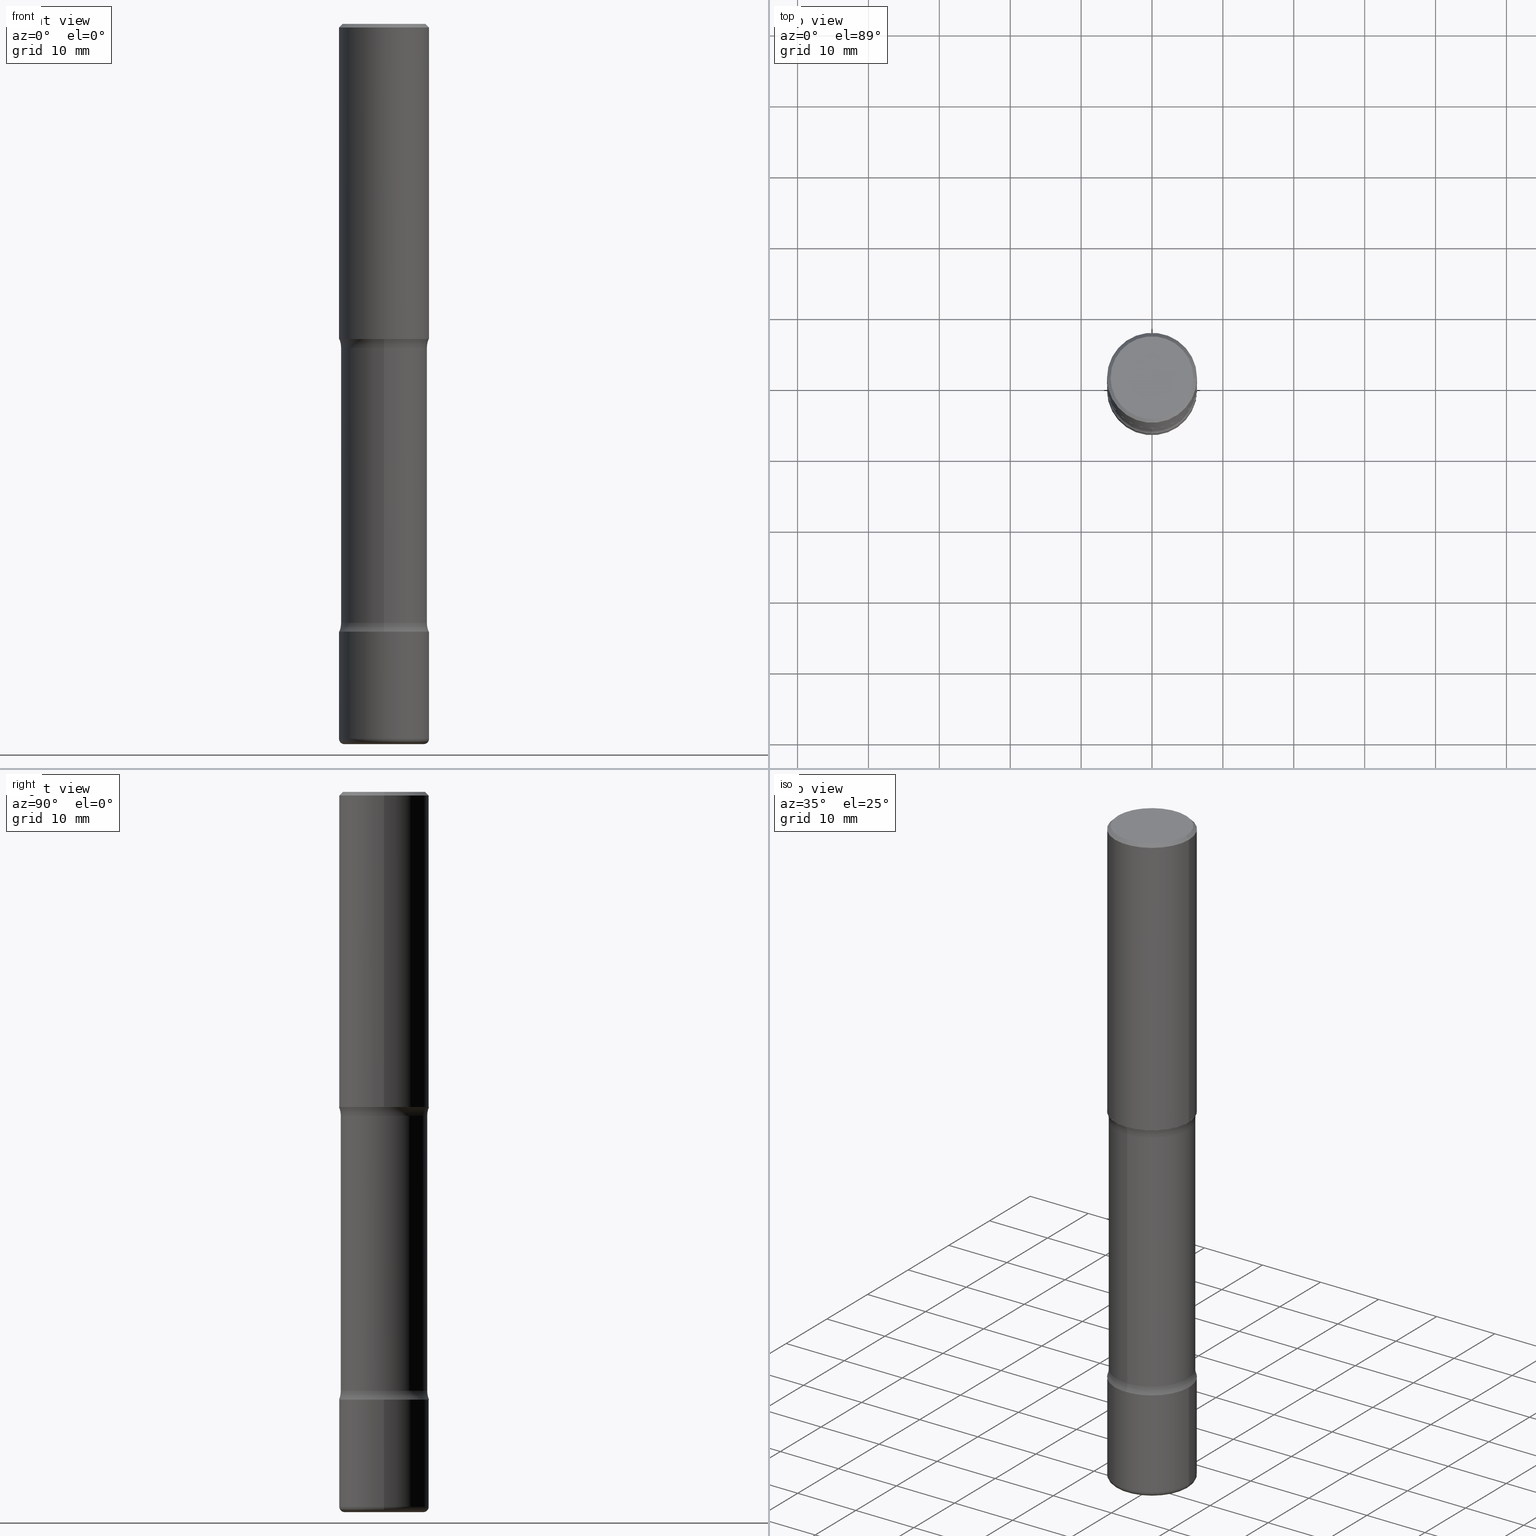
[diagram: canonical four-view strip — front | top / right | iso, engineering-drawing reading convention]
A machine part, canonical four-view strip (front | top / right | iso — engineering-drawing reading convention). The complete STEP part file that produces these views, byte-faithful:
ISO-10303-21;
HEADER;
FILE_DESCRIPTION (( 'STEP AP203' ),
    '1' );
FILE_NAME ('33552.STEP',
    '2024-03-01T22:47:44',
    ( '' ),
    ( '' ),
    'SwSTEP 2.0',
    'SolidWorks 2023',
    '' );
FILE_SCHEMA (( 'CONFIG_CONTROL_DESIGN' ));
ENDSEC;

DATA;
#1 = CIRCLE ( 'NONE', #535, 0.2200000000000003619 ) ;
#2 = CARTESIAN_POINT ( 'NONE',  ( 9.556582629979415278E-29, -1.428855717392867652E-14, -3.999999999999998668 ) ) ;
#3 = AXIS2_PLACEMENT_3D ( 'NONE', #124, #299, #467 ) ;
#4 = DIRECTION ( 'NONE',  ( 1.000000000000000000, -6.982962677686269077E-15, 0.000000000000000000 ) ) ;
#5 = DIRECTION ( 'NONE',  ( -1.000000000000000000, 6.982962677686267499E-15, 0.000000000000000000 ) ) ;
#6 = EDGE_LOOP ( 'NONE', ( #421, #279 ) ) ;
#7 = DIRECTION ( 'NONE',  ( 2.085000654567330410E-29, -4.007692248532904727E-15, -1.000000000000000000 ) ) ;
#8 =( CONVERSION_BASED_UNIT ( 'INCH', #96 ) LENGTH_UNIT ( ) NAMED_UNIT ( #147 ) );
#9 = EDGE_CURVE ( 'NONE', #544, #20, #139, .T. ) ;
#10 = DIRECTION ( 'NONE',  ( 2.445468806185136597E-29, -3.491481338843145583E-15, -1.000000000000000000 ) ) ;
#11 = VECTOR ( 'NONE', #432, 39.37007874015748143 ) ;
#12 = ORGANIZATION ( 'UNSPECIFIED', 'UNSPECIFIED', '' ) ;
#13 = CALENDAR_DATE ( 2024, 1, 3 ) ;
#14 = DIRECTION ( 'NONE',  ( 6.982962677686265133E-15, 1.000000000000000000, -4.553079989440456447E-15 ) ) ;
#15 = DATE_AND_TIME ( #269, #168 ) ;
#16 = CARTESIAN_POINT ( 'NONE',  ( -2.504081769186527752E-15, -0.3650000000000117040, -3.326010205144334098 ) ) ;
#17 = EDGE_CURVE ( 'NONE', #343, #321, #241, .T. ) ;
#18 = APPROVAL_ROLE ( '' ) ;
#19 = DIRECTION ( 'NONE',  ( 2.438088387897960049E-29, -3.491481338843145188E-15, -1.000000000000000000 ) ) ;
#20 = VERTEX_POINT ( 'NONE', #260 ) ;
#21 = PERSON_AND_ORGANIZATION_ROLE ( 'design_owner' ) ;
#22 = CIRCLE ( 'NONE', #94, 0.2500000000000001110 ) ;
#23 = CIRCLE ( 'NONE', #57, 0.1250000000000000555 ) ;
#24 = DIRECTION ( 'NONE',  ( 2.085000654567330410E-29, -4.007692248532904727E-15, -1.000000000000000000 ) ) ;
#25 = VERTEX_POINT ( 'NONE', #503 ) ;
#26 = CARTESIAN_POINT ( 'NONE',  ( -0.2500000000000003331, -1.104610837750119891E-14, -3.375000000000000000 ) ) ;
#27 = ORIENTED_EDGE ( 'NONE', *, *, #17, .T. ) ;
#28 = ADVANCED_FACE ( 'NONE', ( #423 ), #559, .F. ) ;
#29 = CARTESIAN_POINT ( 'NONE',  ( 1.675911042644746767E-15, 0.2399999999999935796, -1.798989794855665014 ) ) ;
#30 = VERTEX_POINT ( 'NONE', #291 ) ;
#31 = PRODUCT ( '33552', '33552', '', ( #540 ) ) ;
#32 = CLOSED_SHELL ( 'NONE', ( #510, #385, #352, #132, #70, #28 ) ) ;
#33 = AXIS2_PLACEMENT_3D ( 'NONE', #320, #491, #109 ) ;
#34 = PLANE ( 'NONE',  #367 ) ;
#35 = ORIENTED_EDGE ( 'NONE', *, *, #558, .F. ) ;
#36 = EDGE_CURVE ( 'NONE', #501, #321, #82, .T. ) ;
#37 = CARTESIAN_POINT ( 'NONE',  ( 2.548781377355569154E-15, 0.3649999999999884448, -3.326010205144337206 ) ) ;
#38 = ORIENTED_EDGE ( 'NONE', *, *, #36, .T. ) ;
#39 = EDGE_CURVE ( 'NONE', #130, #323, #192, .T. ) ;
#40 = ORIENTED_EDGE ( 'NONE', *, *, #406, .T. ) ;
#41 = AXIS2_PLACEMENT_3D ( 'NONE', #83, #255, #422 ) ;
#42 = DIRECTION ( 'NONE',  ( 1.000000000000000000, -6.982962677686265922E-15, 4.876225828469305518E-29 ) ) ;
#43 = CARTESIAN_POINT ( 'NONE',  ( -1.043851414335219820E-46, 1.490343170380447200E-32, 4.268512490100411279E-18 ) ) ;
#44 =( LENGTH_UNIT ( ) NAMED_UNIT ( * ) SI_UNIT ( $, .METRE. ) );
#45 = ORIENTED_EDGE ( 'NONE', *, *, #456, .F. ) ;
#46 = FACE_OUTER_BOUND ( 'NONE', #170, .T. ) ;
#47 = CIRCLE ( 'NONE', #231, 0.2399999999999999356 ) ;
#48 = DIRECTION ( 'NONE',  ( 2.085000654567330410E-29, -4.007692248532904727E-15, -1.000000000000000000 ) ) ;
#49 = FACE_OUTER_BOUND ( 'NONE', #481, .T. ) ;
#50 = DIRECTION ( 'NONE',  ( 1.000000000000000000, -6.982962677686267499E-15, 4.876176775795936353E-29 ) ) ;
#51 = EDGE_CURVE ( 'NONE', #20, #544, #466, .T. ) ;
#52 = APPROVAL ( #476, 'UNSPECIFIED' ) ;
#53 = DIRECTION ( 'NONE',  ( 2.085000654567330410E-29, -4.007692248532904727E-15, -1.000000000000000000 ) ) ;
#54 = PERSON_AND_ORGANIZATION ( #477, #12 ) ;
#55 = FACE_OUTER_BOUND ( 'NONE', #245, .T. ) ;
#56 = AXIS2_PLACEMENT_3D ( 'NONE', #169, #212, #509 ) ;
#57 = AXIS2_PLACEMENT_3D ( 'NONE', #37, #416, #333 ) ;
#58 = DATE_AND_TIME ( #439, #67 ) ;
#59 = DIRECTION ( 'NONE',  ( 2.085000654567330410E-29, -4.007692248532904727E-15, -1.000000000000000000 ) ) ;
#60 = ORIENTED_EDGE ( 'NONE', *, *, #414, .F. ) ;
#61 = APPROVAL_DATE_TIME ( #15, #52 ) ;
#62 = CARTESIAN_POINT ( 'NONE',  ( 0.2500000000000002776, -1.560692158462885722E-14, -3.969999999999999307 ) ) ;
#63 = VERTEX_POINT ( 'NONE', #340 ) ;
#64 = PERSON_AND_ORGANIZATION ( #477, #12 ) ;
#65 = DIRECTION ( 'NONE',  ( -1.000000000000000000, 6.982962677686265922E-15, -4.876176775795935793E-29 ) ) ;
#66 = ORIENTED_EDGE ( 'NONE', *, *, #332, .T. ) ;
#67 = LOCAL_TIME ( 17, 47, 44.00000000000000000, #273 ) ;
#68 = CARTESIAN_POINT ( 'NONE',  ( 0.2500000000000001110, -1.784954126219746583E-15, -0.02000000000000000042 ) ) ;
#69 = ORIENTED_EDGE ( 'NONE', *, *, #426, .T. ) ;
#70 = ADVANCED_FACE ( 'NONE', ( #166 ), #337, .T. ) ;
#71 = DIRECTION ( 'NONE',  ( 1.000000000000000000, -6.860497997771530774E-15, 4.834477119241777907E-29 ) ) ;
#72 = CC_DESIGN_DATE_AND_TIME_ASSIGNMENT ( #235, #315, ( #177 ) ) ;
#73 = ORIENTED_EDGE ( 'NONE', *, *, #256, .F. ) ;
#74 = CARTESIAN_POINT ( 'NONE',  ( 4.279570410823988484E-29, -6.110092342975504671E-15, -1.750000000000000000 ) ) ;
#75 = EDGE_CURVE ( 'NONE', #501, #25, #366, .T. ) ;
#76 = ORIENTED_EDGE ( 'NONE', *, *, #445, .F. ) ;
#77 = PRODUCT_DEFINITION_SHAPE ( 'NONE', 'NONE',  #177 ) ;
#78 = AXIS2_PLACEMENT_3D ( 'NONE', #517, #48, #14 ) ;
#79 = CC_DESIGN_APPROVAL ( #324, ( #398 ) ) ;
#80 = CARTESIAN_POINT ( 'NONE',  ( 0.2300000000000001488, -1.681434332853599997E-15, 4.268512490111905999E-18 ) ) ;
#81 = ADVANCED_FACE ( 'NONE', ( #296 ), #210, .T. ) ;
#82 = LINE ( 'NONE', #297, #344 ) ;
#83 = CARTESIAN_POINT ( 'NONE',  ( 4.279570410823988484E-29, -6.110092342975504671E-15, -1.750000000000000000 ) ) ;
#84 = ORIENTED_EDGE ( 'NONE', *, *, #490, .F. ) ;
#85 = EDGE_CURVE ( 'NONE', #415, #257, #47, .T. ) ;
#86 = AXIS2_PLACEMENT_3D ( 'NONE', #43, #552, #42 ) ;
#87 = APPROVAL_PERSON_ORGANIZATION ( #319, #121, #18 ) ;
#88 = ORIENTED_EDGE ( 'NONE', *, *, #530, .T. ) ;
#89 = ORIENTED_EDGE ( 'NONE', *, *, #9, .F. ) ;
#90 = DIRECTION ( 'NONE',  ( 6.982962677686265922E-15, 1.000000000000000000, -4.007692248532904727E-15 ) ) ;
#91 = LINE ( 'NONE', #221, #545 ) ;
#92 = DIRECTION ( 'NONE',  ( 6.982962677686265922E-15, 1.000000000000000000, -4.370956789862834560E-15 ) ) ;
#93 = EDGE_CURVE ( 'NONE', #323, #130, #122, .T. ) ;
#94 = AXIS2_PLACEMENT_3D ( 'NONE', #154, #547, #543 ) ;
#95 = CARTESIAN_POINT ( 'NONE',  ( 4.279570410823988484E-29, -6.110092342975504671E-15, -1.750000000000000000 ) ) ;
#96 = LENGTH_MEASURE_WITH_UNIT ( LENGTH_MEASURE( 0.02539999999999999897 ), #44 );
#97 = CARTESIAN_POINT ( 'NONE',  ( 0.000000000000000000, 0.000000000000000000, 0.000000000000000000 ) ) ;
#98 = PERSON_AND_ORGANIZATION_ROLE ( 'design_supplier' ) ;
#99 = ADVANCED_FACE ( 'NONE', ( #217 ), #144, .T. ) ;
#100 = FACE_OUTER_BOUND ( 'NONE', #404, .T. ) ;
#101 = ORIENTED_EDGE ( 'NONE', *, *, #9, .T. ) ;
#102 = APPROVAL_ROLE ( '' ) ;
#103 = CARTESIAN_POINT ( 'NONE',  ( -0.2500000000000001110, 1.675911042644704760E-15, -0.02000000000000000042 ) ) ;
#104 = AXIS2_PLACEMENT_3D ( 'NONE', #505, #125, #462 ) ;
#105 = CIRCLE ( 'NONE', #3, 0.2500000000000003331 ) ;
#106 = CARTESIAN_POINT ( 'NONE',  ( 9.708511160554990630E-29, -1.386118091520728581E-14, -3.969999999999999307 ) ) ;
#107 = ORIENTED_EDGE ( 'NONE', *, *, #36, .F. ) ;
#108 = CALENDAR_DATE ( 2024, 1, 3 ) ;
#109 = DIRECTION ( 'NONE',  ( 6.860497997771532351E-15, 1.000000000000000000, 0.000000000000000000 ) ) ;
#110 = ORIENTED_EDGE ( 'NONE', *, *, #51, .T. ) ;
#111 = PLANE ( 'NONE',  #484 ) ;
#112 = EDGE_LOOP ( 'NONE', ( #488, #369 ) ) ;
#113 = AXIS2_PLACEMENT_3D ( 'NONE', #259, #120, #383 ) ;
#114 = CIRCLE ( 'NONE', #300, 0.02999999999999995379 ) ;
#115 = DIRECTION ( 'NONE',  ( 6.982962677686265922E-15, 1.000000000000000000, -4.370956789862815627E-15 ) ) ;
#116 = ORIENTED_EDGE ( 'NONE', *, *, #256, .T. ) ;
#117 = CARTESIAN_POINT ( 'NONE',  ( 4.865331157202923538E-29, -5.271249614729646210E-15, -1.750000000000000000 ) ) ;
#118 = EDGE_LOOP ( 'NONE', ( #73, #374, #507, #513 ) ) ;
#119 = LINE ( 'NONE', #205, #293 ) ;
#120 = DIRECTION ( 'NONE',  ( 2.438088387897960049E-29, -3.491481338843145188E-15, -1.000000000000000000 ) ) ;
#121 = APPROVAL ( #402, 'UNSPECIFIED' ) ;
#122 = CIRCLE ( 'NONE', #78, 0.2399999999999990474 ) ;
#123 = AXIS2_PLACEMENT_3D ( 'NONE', #304, #428, #215 ) ;
#124 = CARTESIAN_POINT ( 'NONE',  ( 8.253457220874836014E-29, -1.178374951859561452E-14, -3.375000000000000000 ) ) ;
#125 = DIRECTION ( 'NONE',  ( -2.445468806185136597E-29, 3.491481338843145583E-15, 1.000000000000000000 ) ) ;
#126 = CC_DESIGN_DATE_AND_TIME_ASSIGNMENT ( #186, #361, ( #398 ) ) ;
#127 = EDGE_LOOP ( 'NONE', ( #89, #150, #272, #193 ) ) ;
#128 = EDGE_LOOP ( 'NONE', ( #110, #101 ) ) ;
#129 = AXIS2_PLACEMENT_3D ( 'NONE', #2, #478, #528 ) ;
#130 = VERTEX_POINT ( 'NONE', #137 ) ;
#131 = CARTESIAN_POINT ( 'NONE',  ( 1.606081415867842251E-15, 0.2300000000000001488, -8.009064516888738702E-16 ) ) ;
#132 = ADVANCED_FACE ( 'NONE', ( #228 ), #522, .T. ) ;
#133 = FACE_OUTER_BOUND ( 'NONE', #498, .T. ) ;
#134 = ORIENTED_EDGE ( 'NONE', *, *, #405, .F. ) ;
#135 = DIRECTION ( 'NONE',  ( -1.000000000000000000, 7.105427357601001859E-15, 0.000000000000000000 ) ) ;
#136 = EDGE_CURVE ( 'NONE', #20, #343, #357, .T. ) ;
#137 = CARTESIAN_POINT ( 'NONE',  ( -1.680822009453969216E-15, -0.2400000000000045153, -1.798989794855662794 ) ) ;
#138 = DIRECTION ( 'NONE',  ( 6.982962677686265922E-15, 1.000000000000000000, -4.553079989440439881E-15 ) ) ;
#139 = CIRCLE ( 'NONE', #56, 0.2300000000000001488 ) ;
#140 = CARTESIAN_POINT ( 'NONE',  ( 4.890937612370273159E-31, -6.982962677686291609E-17, -0.02000000000000000042 ) ) ;
#141 = CIRCLE ( 'NONE', #433, 0.2499999999999992506 ) ;
#142 = ADVANCED_FACE ( 'NONE', ( #388 ), #187, .T. ) ;
#143 = PERSON_AND_ORGANIZATION_ROLE ( 'classification_officer' ) ;
#144 = CYLINDRICAL_SURFACE ( 'NONE', #389, 0.2500000000000002220 ) ;
#145 = PERSON_AND_ORGANIZATION ( #477, #12 ) ;
#146 = CARTESIAN_POINT ( 'NONE',  ( 8.253457220874836014E-29, -1.178374951859561452E-14, -3.375000000000000000 ) ) ;
#147 = DIMENSIONAL_EXPONENTS ( 1.000000000000000000, 0.000000000000000000, 0.000000000000000000, 0.000000000000000000, 0.000000000000000000, 0.000000000000000000, 0.000000000000000000 ) ;
#148 = LINE ( 'NONE', #68, #514 ) ;
#149 = AXIS2_PLACEMENT_3D ( 'NONE', #480, #275, #442 ) ;
#150 = ORIENTED_EDGE ( 'NONE', *, *, #294, .T. ) ;
#151 = CIRCLE ( 'NONE', #460, 0.2500000000000002776 ) ;
#152 = DIRECTION ( 'NONE',  ( -2.445468806185136877E-29, 3.491481338843145188E-15, 1.000000000000000000 ) ) ;
#153 = ORIENTED_EDGE ( 'NONE', *, *, #51, .F. ) ;
#154 = CARTESIAN_POINT ( 'NONE',  ( 4.890937612370273159E-31, -6.982962677686291609E-17, -0.02000000000000000042 ) ) ;
#155 = ORIENTED_EDGE ( 'NONE', *, *, #196, .T. ) ;
#156 = CARTESIAN_POINT ( 'NONE',  ( -1.715124499442802427E-15, -0.2500000000000121014, -3.374999999999998668 ) ) ;
#157 = ORIENTED_EDGE ( 'NONE', *, *, #136, .T. ) ;
#158 = ADVANCED_FACE ( 'NONE', ( #100 ), #175, .T. ) ;
#159 = CLOSED_SHELL ( 'NONE', ( #99, #237, #81, #506, #216, #158 ) ) ;
#160 = CC_DESIGN_SECURITY_CLASSIFICATION ( #398, ( #555 ) ) ;
#161 = FACE_OUTER_BOUND ( 'NONE', #6, .T. ) ;
#162 = ORIENTED_EDGE ( 'NONE', *, *, #430, .F. ) ;
#163 = DIRECTION ( 'NONE',  ( 2.085000654567329849E-29, -4.007692248532904727E-15, -1.000000000000000000 ) ) ;
#164 = ORIENTED_EDGE ( 'NONE', *, *, #392, .F. ) ;
#165 = DIRECTION ( 'NONE',  ( -2.445468806185136597E-29, 3.491481338843145583E-15, 1.000000000000000000 ) ) ;
#166 = FACE_OUTER_BOUND ( 'NONE', #532, .T. ) ;
#167 = AXIS2_PLACEMENT_3D ( 'NONE', #285, #240, #278 ) ;
#168 = LOCAL_TIME ( 17, 47, 44.00000000000000000, #267 ) ;
#169 = CARTESIAN_POINT ( 'NONE',  ( -1.043851414335219820E-46, 1.490343170380447200E-32, 4.268512490100411279E-18 ) ) ;
#170 = EDGE_LOOP ( 'NONE', ( #377, #342 ) ) ;
#171 = VERTEX_POINT ( 'NONE', #180 ) ;
#172 = MANIFOLD_SOLID_BREP ( 'Body-Move/Copy2[1]', #32 ) ;
#173 = AXIS2_PLACEMENT_3D ( 'NONE', #117, #244, #411 ) ;
#174 = CC_DESIGN_APPROVAL ( #52, ( #177 ) ) ;
#175 = CYLINDRICAL_SURFACE ( 'NONE', #424, 0.2500000000000002220 ) ;
#176 = CARTESIAN_POINT ( 'NONE',  ( 8.151313466533656524E-29, -1.158741349749535365E-14, -3.326010205144335430 ) ) ;
#177 = PRODUCT_DEFINITION ( 'UNKNOWN', '', #555, #364 ) ;
#178 = DIRECTION ( 'NONE',  ( -2.445468806185136877E-29, 3.491481338843145188E-15, 1.000000000000000000 ) ) ;
#179 = DIRECTION ( 'NONE',  ( 2.438088387897960049E-29, -3.491481338843145188E-15, -1.000000000000000000 ) ) ;
#180 = CARTESIAN_POINT ( 'NONE',  ( -1.715124499442828459E-15, -0.2500000000000044964, -1.749999999999999112 ) ) ;
#181 = APPROVAL_ROLE ( '' ) ;
#182 = AXIS2_PLACEMENT_3D ( 'NONE', #305, #53, #396 ) ;
#183 = DIRECTION ( 'NONE',  ( -2.438088387897960049E-29, 3.491481338843145188E-15, 1.000000000000000000 ) ) ;
#184 = ADVANCED_FACE ( 'NONE', ( #133 ), #303, .F. ) ;
#185 =( GEOMETRIC_REPRESENTATION_CONTEXT ( 3 ) GLOBAL_UNCERTAINTY_ASSIGNED_CONTEXT ( ( #533 ) ) GLOBAL_UNIT_ASSIGNED_CONTEXT ( ( #8, #489, #195 ) ) REPRESENTATION_CONTEXT ( 'NONE', 'WORKASPACE' ) );
#186 = DATE_AND_TIME ( #13, #523 ) ;
#187 = CYLINDRICAL_SURFACE ( 'NONE', #129, 0.2399999999999994915 ) ;
#188 = ORIENTED_EDGE ( 'NONE', *, *, #426, .F. ) ;
#189 = CARTESIAN_POINT ( 'NONE',  ( 1.675911042644795873E-15, 0.2399999999999852252, -4.000000000000000000 ) ) ;
#190 = PERSON_AND_ORGANIZATION_ROLE ( 'creator' ) ;
#191 = LINE ( 'NONE', #236, #220 ) ;
#192 = CIRCLE ( 'NONE', #355, 0.2399999999999990474 ) ;
#193 = ORIENTED_EDGE ( 'NONE', *, *, #136, .F. ) ;
#194 = AXIS2_PLACEMENT_3D ( 'NONE', #494, #390, #4 ) ;
#195 =( NAMED_UNIT ( * ) SI_UNIT ( $, .STERADIAN. ) SOLID_ANGLE_UNIT ( ) );
#196 = EDGE_CURVE ( 'NONE', #331, #30, #91, .T. ) ;
#197 = DIRECTION ( 'NONE',  ( 6.860497997771530774E-15, 1.000000000000000000, 0.000000000000000000 ) ) ;
#198 = ORIENTED_EDGE ( 'NONE', *, *, #553, .T. ) ;
#199 = CARTESIAN_POINT ( 'NONE',  ( -0.2500000000000001110, 1.675911042644704760E-15, -0.02000000000000000042 ) ) ;
#200 = ORIENTED_EDGE ( 'NONE', *, *, #39, .T. ) ;
#201 = FACE_OUTER_BOUND ( 'NONE', #371, .T. ) ;
#202 = ORIENTED_EDGE ( 'NONE', *, *, #456, .T. ) ;
#203 = CIRCLE ( 'NONE', #504, 0.2500000000000003331 ) ;
#204 = CIRCLE ( 'NONE', #243, 0.2200000000000003619 ) ;
#205 = CARTESIAN_POINT ( 'NONE',  ( -0.2500000000000003331, 1.776356839400252831E-15, -1.229733772563727987E-29 ) ) ;
#206 = ORIENTED_EDGE ( 'NONE', *, *, #558, .T. ) ;
#207 = CARTESIAN_POINT ( 'NONE',  ( 9.781875224740546387E-29, -1.396592535537258233E-14, -4.000000000000000000 ) ) ;
#208 = VERTEX_POINT ( 'NONE', #438 ) ;
#209 = EDGE_LOOP ( 'NONE', ( #410, #238, #229, #557 ) ) ;
#210 = CONICAL_SURFACE ( 'NONE', #316, 0.2500000000000001110, 0.7853981633974479459 ) ;
#211 = CC_DESIGN_APPROVAL ( #121, ( #555 ) ) ;
#212 = DIRECTION ( 'NONE',  ( -2.445468806185136597E-29, 3.491481338843145583E-15, 1.000000000000000000 ) ) ;
#213 = EDGE_LOOP ( 'NONE', ( #164, #200, #458, #242 ) ) ;
#214 = ADVANCED_FACE ( 'NONE', ( #55 ), #298, .F. ) ;
#215 = DIRECTION ( 'NONE',  ( 1.000000000000000000, -6.982962677686269077E-15, 0.000000000000000000 ) ) ;
#216 = ADVANCED_FACE ( 'NONE', ( #473 ), #314, .F. ) ;
#217 = FACE_OUTER_BOUND ( 'NONE', #539, .T. ) ;
#218 = CARTESIAN_POINT ( 'NONE',  ( 0.2200000000000003619, -1.539743270429827048E-14, -3.970000000000000195 ) ) ;
#219 = AXIS2_PLACEMENT_3D ( 'NONE', #330, #537, #448 ) ;
#220 = VECTOR ( 'NONE', #152, 39.37007874015748143 ) ;
#221 = CARTESIAN_POINT ( 'NONE',  ( 0.2500000000000003331, -1.745740669421569044E-15, 1.219044193948985630E-29 ) ) ;
#222 = ORIENTED_EDGE ( 'NONE', *, *, #359, .T. ) ;
#223 = DIRECTION ( 'NONE',  ( -2.445468806185136597E-29, 3.491481338843145583E-15, 1.000000000000000000 ) ) ;
#224 = FACE_OUTER_BOUND ( 'NONE', #127, .T. ) ;
#225 = APPROVAL_DATE_TIME ( #312, #121 ) ;
#226 = APPLICATION_CONTEXT ( 'configuration controlled 3d designs of mechanical parts and assemblies' ) ;
#227 = ADVANCED_FACE ( 'NONE', ( #521 ), #353, .T. ) ;
#228 = FACE_OUTER_BOUND ( 'NONE', #318, .T. ) ;
#229 = ORIENTED_EDGE ( 'NONE', *, *, #359, .F. ) ;
#230 = COORDINATED_UNIVERSAL_TIME_OFFSET ( 5, 0, .BEHIND. ) ;
#231 = AXIS2_PLACEMENT_3D ( 'NONE', #350, #7, #311 ) ;
#232 = CARTESIAN_POINT ( 'NONE',  ( 9.556582629979415278E-29, -1.428855717392867652E-14, -3.999999999999998668 ) ) ;
#233 = APPROVAL_DATE_TIME ( #58, #324 ) ;
#234 = DIRECTION ( 'NONE',  ( 2.085000654567330410E-29, -4.007692248532904727E-15, -1.000000000000000000 ) ) ;
#235 = DATE_AND_TIME ( #108, #329 ) ;
#236 = CARTESIAN_POINT ( 'NONE',  ( -0.2500000000000002220, 1.776356839400252042E-15, -1.229733772563727566E-29 ) ) ;
#237 = ADVANCED_FACE ( 'NONE', ( #224 ), #327, .T. ) ;
#238 = ORIENTED_EDGE ( 'NONE', *, *, #486, .T. ) ;
#239 = PERSON_AND_ORGANIZATION_ROLE ( 'creator' ) ;
#240 = DIRECTION ( 'NONE',  ( -2.445468806185136597E-29, 3.491481338843145583E-15, 1.000000000000000000 ) ) ;
#241 = CIRCLE ( 'NONE', #384, 0.2500000000000001110 ) ;
#242 = ORIENTED_EDGE ( 'NONE', *, *, #85, .F. ) ;
#243 = AXIS2_PLACEMENT_3D ( 'NONE', #207, #165, #336 ) ;
#244 = DIRECTION ( 'NONE',  ( 2.085000654567330410E-29, -4.007692248532904727E-15, -1.000000000000000000 ) ) ;
#245 = EDGE_LOOP ( 'NONE', ( #188, #446, #40, #548 ) ) ;
#246 = CARTESIAN_POINT ( 'NONE',  ( 0.2200000000000003619, -1.550217714446356385E-14, -4.000000000000000000 ) ) ;
#247 = ORIENTED_EDGE ( 'NONE', *, *, #75, .T. ) ;
#248 = DIRECTION ( 'NONE',  ( 6.982962677686265922E-15, 1.000000000000000000, -4.007692248532904727E-15 ) ) ;
#249 = ORIENTED_EDGE ( 'NONE', *, *, #406, .F. ) ;
#250 = CIRCLE ( 'NONE', #219, 0.2500000000000002776 ) ;
#251 = CC_DESIGN_PERSON_AND_ORGANIZATION_ASSIGNMENT ( #395, #98, ( #555 ) ) ;
#252 = APPROVAL_PERSON_ORGANIZATION ( #527, #324, #102 ) ;
#253 = FACE_OUTER_BOUND ( 'NONE', #526, .T. ) ;
#254 = DIRECTION ( 'NONE',  ( -2.445468806185136877E-29, 3.491481338843145188E-15, 1.000000000000000000 ) ) ;
#255 = DIRECTION ( 'NONE',  ( -2.445468806185136597E-29, 3.491481338843145583E-15, 1.000000000000000000 ) ) ;
#256 = EDGE_CURVE ( 'NONE', #391, #288, #203, .T. ) ;
#257 = VERTEX_POINT ( 'NONE', #452 ) ;
#258 = AXIS2_PLACEMENT_3D ( 'NONE', #502, #351, #248 ) ;
#259 = CARTESIAN_POINT ( 'NONE',  ( 8.253457220874836014E-29, -1.178374951859561452E-14, -3.375000000000000000 ) ) ;
#260 = CARTESIAN_POINT ( 'NONE',  ( -0.2300000000000001488, 1.640996229256273703E-15, 4.268512490089056766E-18 ) ) ;
#261 = CARTESIAN_POINT ( 'NONE',  ( 0.2500000000000003331, -7.855833012397073715E-15, -1.750000000000000000 ) ) ;
#262 = ORIENTED_EDGE ( 'NONE', *, *, #326, .F. ) ;
#263 = CYLINDRICAL_SURFACE ( 'NONE', #496, 0.2500000000000003331 ) ;
#264 = TOROIDAL_SURFACE ( 'NONE', #512, 0.3650000000000000466, 0.1250000000000000555 ) ;
#265 = APPROVAL_PERSON_ORGANIZATION ( #306, #52, #181 ) ;
#266 = DIRECTION ( 'NONE',  ( 2.085000654567330410E-29, -4.007692248532904727E-15, -1.000000000000000000 ) ) ;
#267 = COORDINATED_UNIVERSAL_TIME_OFFSET ( 5, 0, .BEHIND. ) ;
#268 = CARTESIAN_POINT ( 'NONE',  ( 4.890937612370273159E-31, -6.982962677686291609E-17, -0.02000000000000000042 ) ) ;
#269 = CALENDAR_DATE ( 2024, 1, 3 ) ;
#270 = CC_DESIGN_PERSON_AND_ORGANIZATION_ASSIGNMENT ( #145, #190, ( #177 ) ) ;
#271 = DIRECTION ( 'NONE',  ( 1.000000000000000000, -6.982962677686267499E-15, 4.876176775795936353E-29 ) ) ;
#272 = ORIENTED_EDGE ( 'NONE', *, *, #335, .T. ) ;
#273 = COORDINATED_UNIVERSAL_TIME_OFFSET ( 5, 0, .BEHIND. ) ;
#274 = VECTOR ( 'NONE', #59, 39.37007874015748143 ) ;
#275 = DIRECTION ( 'NONE',  ( -2.445468806185136597E-29, 3.491481338843145583E-15, 1.000000000000000000 ) ) ;
#276 = AXIS2_PLACEMENT_3D ( 'NONE', #534, #479, #277 ) ;
#277 = DIRECTION ( 'NONE',  ( 1.000000000000000000, 0.000000000000000000, 0.000000000000000000 ) ) ;
#278 = DIRECTION ( 'NONE',  ( 1.000000000000000000, -6.982962677686269866E-15, 4.883557194083114022E-29 ) ) ;
#279 = ORIENTED_EDGE ( 'NONE', *, *, #553, .F. ) ;
#280 = CARTESIAN_POINT ( 'NONE',  ( -0.2200000000000003619, -1.224377770625369636E-14, -4.000000000000000000 ) ) ;
#281 = ORIENTED_EDGE ( 'NONE', *, *, #414, .T. ) ;
#282 = AXIS2_PLACEMENT_3D ( 'NONE', #95, #183, #525 ) ;
#283 = ORIENTED_EDGE ( 'NONE', *, *, #445, .T. ) ;
#284 = CIRCLE ( 'NONE', #123, 0.2500000000000003331 ) ;
#285 = CARTESIAN_POINT ( 'NONE',  ( 9.708511160554992872E-29, -1.386118091520728738E-14, -3.970000000000000195 ) ) ;
#286 = VERTEX_POINT ( 'NONE', #26 ) ;
#287 = FACE_OUTER_BOUND ( 'NONE', #209, .T. ) ;
#288 = VERTEX_POINT ( 'NONE', #325 ) ;
#289 = APPLICATION_CONTEXT ( 'configuration controlled 3d designs of mechanical parts and assemblies' ) ;
#290 = FACE_OUTER_BOUND ( 'NONE', #118, .T. ) ;
#291 = CARTESIAN_POINT ( 'NONE',  ( 0.2500000000000003331, -1.352949018801718435E-14, -3.375000000000000000 ) ) ;
#292 = VECTOR ( 'NONE', #24, 39.37007874015748143 ) ;
#293 = VECTOR ( 'NONE', #349, 39.37007874015748143 ) ;
#294 = EDGE_CURVE ( 'NONE', #544, #321, #148, .T. ) ;
#295 = ORIENTED_EDGE ( 'NONE', *, *, #335, .F. ) ;
#296 = FACE_OUTER_BOUND ( 'NONE', #419, .T. ) ;
#297 = CARTESIAN_POINT ( 'NONE',  ( 0.2500000000000002220, -1.745740669421568453E-15, 1.219044193948985209E-29 ) ) ;
#298 = TOROIDAL_SURFACE ( 'NONE', #182, 0.3649999999999990474, 0.1249999999999999584 ) ;
#299 = DIRECTION ( 'NONE',  ( 2.085000654567330410E-29, -4.007692248532904727E-15, -1.000000000000000000 ) ) ;
#300 = AXIS2_PLACEMENT_3D ( 'NONE', #518, #551, #135 ) ;
#301 = ORIENTED_EDGE ( 'NONE', *, *, #294, .F. ) ;
#302 = CARTESIAN_POINT ( 'NONE',  ( 4.971665203391013803E-29, -5.461584899408529249E-15, -1.798989794855663682 ) ) ;
#303 = PLANE ( 'NONE',  #554 ) ;
#304 = CARTESIAN_POINT ( 'NONE',  ( 8.253457220874836014E-29, -1.178374951859561452E-14, -3.375000000000000000 ) ) ;
#305 = CARTESIAN_POINT ( 'NONE',  ( 4.971665203391013803E-29, -5.461584899408529249E-15, -1.798989794855663682 ) ) ;
#306 = PERSON_AND_ORGANIZATION ( #477, #12 ) ;
#307 = AXIS2_PLACEMENT_3D ( 'NONE', #16, #71, #197 ) ;
#308 = CIRCLE ( 'NONE', #485, 0.1249999999999999584 ) ;
#309 = DIRECTION ( 'NONE',  ( 2.445468806185136597E-29, -3.491481338843145583E-15, -1.000000000000000000 ) ) ;
#310 = APPLICATION_PROTOCOL_DEFINITION ( 'international standard', 'config_control_design', 1994, #226 ) ;
#311 = DIRECTION ( 'NONE',  ( 6.982962677686265922E-15, 1.000000000000000000, -4.553079989440439881E-15 ) ) ;
#312 = DATE_AND_TIME ( #447, #378 ) ;
#313 = ADVANCED_FACE ( 'NONE', ( #201 ), #264, .F. ) ;
#314 = PLANE ( 'NONE',  #282 ) ;
#315 = DATE_TIME_ROLE ( 'creation_date' ) ;
#316 = AXIS2_PLACEMENT_3D ( 'NONE', #268, #10, #5 ) ;
#317 = AXIS2_PLACEMENT_3D ( 'NONE', #74, #560, #459 ) ;
#318 = EDGE_LOOP ( 'NONE', ( #550, #198, #542, #60 ) ) ;
#319 = PERSON_AND_ORGANIZATION ( #477, #12 ) ;
#320 = CARTESIAN_POINT ( 'NONE',  ( -2.504081769186552601E-15, -0.3650000000000044875, -1.798989794855662350 ) ) ;
#321 = VERTEX_POINT ( 'NONE', #368 ) ;
#322 = DIRECTION ( 'NONE',  ( 6.982962677686265922E-15, 1.000000000000000000, -4.007692248532904727E-15 ) ) ;
#323 = VERTEX_POINT ( 'NONE', #29 ) ;
#324 = APPROVAL ( #482, 'UNSPECIFIED' ) ;
#325 = CARTESIAN_POINT ( 'NONE',  ( 1.745740669421651677E-15, 0.2499999999999885369, -3.375000000000000888 ) ) ;
#326 = EDGE_CURVE ( 'NONE', #323, #257, #401, .T. ) ;
#327 = CONICAL_SURFACE ( 'NONE', #376, 0.2500000000000001110, 0.7853981633974479459 ) ;
#328 = VERTEX_POINT ( 'NONE', #280 ) ;
#329 = LOCAL_TIME ( 17, 47, 44.00000000000000000, #436 ) ;
#330 = CARTESIAN_POINT ( 'NONE',  ( 9.708511160554990630E-29, -1.386118091520728581E-14, -3.969999999999999307 ) ) ;
#331 = VERTEX_POINT ( 'NONE', #62 ) ;
#332 = EDGE_CURVE ( 'NONE', #171, #208, #418, .T. ) ;
#333 = DIRECTION ( 'NONE',  ( -6.982962677686267499E-15, -1.000000000000000000, 0.000000000000000000 ) ) ;
#334 = EDGE_LOOP ( 'NONE', ( #461, #386 ) ) ;
#335 = EDGE_CURVE ( 'NONE', #321, #343, #22, .T. ) ;
#336 = DIRECTION ( 'NONE',  ( 1.000000000000000000, -6.982962677686268288E-15, 0.000000000000000000 ) ) ;
#337 = CYLINDRICAL_SURFACE ( 'NONE', #104, 0.2500000000000003331 ) ;
#338 = CLOSED_SHELL ( 'NONE', ( #227, #515, #470, #214, #449, #184, #313, #142 ) ) ;
#339 = CIRCLE ( 'NONE', #194, 0.2500000000000003331 ) ;
#340 = CARTESIAN_POINT ( 'NONE',  ( -0.2500000000000002776, -1.208482407580703376E-14, -3.969999999999999307 ) ) ;
#341 = CC_DESIGN_PERSON_AND_ORGANIZATION_ASSIGNMENT ( #54, #143, ( #398 ) ) ;
#342 = ORIENTED_EDGE ( 'NONE', *, *, #332, .F. ) ;
#343 = VERTEX_POINT ( 'NONE', #199 ) ;
#344 = VECTOR ( 'NONE', #254, 39.37007874015748143 ) ;
#345 = CIRCLE ( 'NONE', #317, 0.2500000000000003331 ) ;
#346 = DIRECTION ( 'NONE',  ( 2.085000654567330410E-29, -4.007692248532904727E-15, -1.000000000000000000 ) ) ;
#347 = TOROIDAL_SURFACE ( 'NONE', #425, 0.3649999999999990474, 0.1249999999999999584 ) ;
#348 = DIRECTION ( 'NONE',  ( -2.445468806185136597E-29, 3.491481338843145583E-15, 1.000000000000000000 ) ) ;
#349 = DIRECTION ( 'NONE',  ( -2.445468806185136877E-29, 3.491481338843145188E-15, 1.000000000000000000 ) ) ;
#350 = CARTESIAN_POINT ( 'NONE',  ( 8.151313466533656524E-29, -1.158741349749535365E-14, -3.326010205144335430 ) ) ;
#351 = DIRECTION ( 'NONE',  ( 2.085000654567330410E-29, -4.007692248532904727E-15, -1.000000000000000000 ) ) ;
#352 = ADVANCED_FACE ( 'NONE', ( #161 ), #111, .T. ) ;
#353 = CYLINDRICAL_SURFACE ( 'NONE', #440, 0.2399999999999994915 ) ;
#354 = SECURITY_CLASSIFICATION_LEVEL ( 'unclassified' ) ;
#355 = AXIS2_PLACEMENT_3D ( 'NONE', #556, #463, #382 ) ;
#356 = CIRCLE ( 'NONE', #546, 0.02999999999999995379 ) ;
#357 = LINE ( 'NONE', #103, #11 ) ;
#358 = MANIFOLD_SOLID_BREP ( 'Body-Move/Copy2[2]', #159 ) ;
#359 = EDGE_CURVE ( 'NONE', #331, #63, #250, .T. ) ;
#360 = ORIENTED_EDGE ( 'NONE', *, *, #17, .F. ) ;
#361 = DATE_TIME_ROLE ( 'classification_date' ) ;
#362 = MANIFOLD_SOLID_BREP ( 'Body-Move/Copy2[4]', #338 ) ;
#363 = DIRECTION ( 'NONE',  ( 2.085000654567330410E-29, -4.007692248532904727E-15, -1.000000000000000000 ) ) ;
#364 = DESIGN_CONTEXT ( 'detailed design', #226, 'design' ) ;
#365 = CARTESIAN_POINT ( 'NONE',  ( 2.548781377355530106E-15, 0.3649999999999936073, -1.798989794855665014 ) ) ;
#366 = CIRCLE ( 'NONE', #41, 0.2500000000000003331 ) ;
#367 = AXIS2_PLACEMENT_3D ( 'NONE', #472, #163, #420 ) ;
#368 = CARTESIAN_POINT ( 'NONE',  ( 0.2500000000000001110, -1.784954126219746583E-15, -0.02000000000000000042 ) ) ;
#369 = ORIENTED_EDGE ( 'NONE', *, *, #430, .T. ) ;
#370 = CARTESIAN_POINT ( 'NONE',  ( -1.680822009453943972E-15, -0.2400000000000115097, -3.326010205144334542 ) ) ;
#371 = EDGE_LOOP ( 'NONE', ( #134, #35, #88, #283 ) ) ;
#372 = EDGE_CURVE ( 'NONE', #412, #328, #1, .T. ) ;
#373 = CARTESIAN_POINT ( 'NONE',  ( -4.091864834073704698E-29, -3.383391076383988679E-14, -3.999999999999999556 ) ) ;
#374 = ORIENTED_EDGE ( 'NONE', *, *, #405, .T. ) ;
#375 = CARTESIAN_POINT ( 'NONE',  ( 9.781875224740546387E-29, -1.396592535537258233E-14, -4.000000000000000000 ) ) ;
#376 = AXIS2_PLACEMENT_3D ( 'NONE', #140, #309, #399 ) ;
#377 = ORIENTED_EDGE ( 'NONE', *, *, #492, .F. ) ;
#378 = LOCAL_TIME ( 17, 47, 44.00000000000000000, #230 ) ;
#379 = PLANE ( 'NONE',  #441 ) ;
#380 = CARTESIAN_POINT ( 'NONE',  ( 4.890937612370273159E-31, -6.982962677686291609E-17, -0.02000000000000000042 ) ) ;
#381 = DIRECTION ( 'NONE',  ( -6.982962677686266711E-15, -1.000000000000000000, 3.491481338843145583E-15 ) ) ;
#382 = DIRECTION ( 'NONE',  ( 6.982962677686265133E-15, 1.000000000000000000, -4.553079989440456447E-15 ) ) ;
#383 = DIRECTION ( 'NONE',  ( -1.000000000000000000, 6.982962677686265922E-15, -4.876176775795935793E-29 ) ) ;
#384 = AXIS2_PLACEMENT_3D ( 'NONE', #380, #468, #429 ) ;
#385 = ADVANCED_FACE ( 'NONE', ( #287 ), #407, .T. ) ;
#386 = ORIENTED_EDGE ( 'NONE', *, *, #524, .F. ) ;
#387 = ORIENTED_EDGE ( 'NONE', *, *, #417, .T. ) ;
#388 = FACE_OUTER_BOUND ( 'NONE', #213, .T. ) ;
#389 = AXIS2_PLACEMENT_3D ( 'NONE', #483, #519, #50 ) ;
#390 = DIRECTION ( 'NONE',  ( -2.445468806185136597E-29, 3.491481338843145583E-15, 1.000000000000000000 ) ) ;
#391 = VERTEX_POINT ( 'NONE', #156 ) ;
#392 = EDGE_CURVE ( 'NONE', #130, #415, #409, .T. ) ;
#393 = DIRECTION ( 'NONE',  ( 1.000000000000000000, -6.982962677686266711E-15, 4.876176775795935793E-29 ) ) ;
#394 = CARTESIAN_POINT ( 'NONE',  ( 8.253457220874836014E-29, -1.178374951859561452E-14, -3.375000000000000000 ) ) ;
#395 = PERSON_AND_ORGANIZATION ( #477, #12 ) ;
#396 = DIRECTION ( 'NONE',  ( 6.982962677686265922E-15, 1.000000000000000000, -4.007692248532904727E-15 ) ) ;
#397 = COORDINATED_UNIVERSAL_TIME_OFFSET ( 5, 0, .BEHIND. ) ;
#398 = SECURITY_CLASSIFICATION ( '', '', #354 ) ;
#399 = DIRECTION ( 'NONE',  ( -1.000000000000000000, 6.982962677686267499E-15, 0.000000000000000000 ) ) ;
#400 = SHAPE_DEFINITION_REPRESENTATION ( #77, #511 ) ;
#401 = LINE ( 'NONE', #189, #274 ) ;
#402 = APPROVAL_STATUS ( 'not_yet_approved' ) ;
#403 = DIRECTION ( 'NONE',  ( 0.7071067811865472397, -7.319954787623254468E-15, -0.7071067811865477948 ) ) ;
#404 = EDGE_LOOP ( 'NONE', ( #495, #450, #38, #360 ) ) ;
#405 = EDGE_CURVE ( 'NONE', #391, #415, #474, .T. ) ;
#406 = EDGE_CURVE ( 'NONE', #323, #208, #308, .T. ) ;
#407 = TOROIDAL_SURFACE ( 'NONE', #167, 0.2200000000000003619, 0.02999999999999995379 ) ;
#408 = TOROIDAL_SURFACE ( 'NONE', #258, 0.3650000000000000466, 0.1250000000000000555 ) ;
#409 = LINE ( 'NONE', #454, #292 ) ;
#410 = ORIENTED_EDGE ( 'NONE', *, *, #372, .T. ) ;
#411 = DIRECTION ( 'NONE',  ( 6.982962677686265922E-15, 1.000000000000000000, -4.370956789862834560E-15 ) ) ;
#412 = VERTEX_POINT ( 'NONE', #246 ) ;
#413 = CARTESIAN_POINT ( 'NONE',  ( 8.133654205733899792E-29, -1.161270256406331038E-14, -3.326010205144335430 ) ) ;
#414 = EDGE_CURVE ( 'NONE', #63, #331, #151, .T. ) ;
#415 = VERTEX_POINT ( 'NONE', #370 ) ;
#416 = DIRECTION ( 'NONE',  ( -1.000000000000000000, 6.982962677686265922E-15, -4.883557194083112901E-29 ) ) ;
#417 = EDGE_CURVE ( 'NONE', #25, #343, #191, .T. ) ;
#418 = CIRCLE ( 'NONE', #173, 0.2499999999999992506 ) ;
#419 = EDGE_LOOP ( 'NONE', ( #301, #153, #157, #27 ) ) ;
#420 = DIRECTION ( 'NONE',  ( 6.982962677686265922E-15, 1.000000000000000000, -4.007692248532904727E-15 ) ) ;
#421 = ORIENTED_EDGE ( 'NONE', *, *, #372, .F. ) ;
#422 = DIRECTION ( 'NONE',  ( 1.000000000000000000, -6.982962677686265133E-15, 0.000000000000000000 ) ) ;
#423 = FACE_OUTER_BOUND ( 'NONE', #112, .T. ) ;
#424 = AXIS2_PLACEMENT_3D ( 'NONE', #97, #348, #271 ) ;
#425 = AXIS2_PLACEMENT_3D ( 'NONE', #302, #469, #90 ) ;
#426 = EDGE_CURVE ( 'NONE', #130, #171, #475, .T. ) ;
#427 = ORIENTED_EDGE ( 'NONE', *, *, #39, .F. ) ;
#428 = DIRECTION ( 'NONE',  ( -2.445468806185136597E-29, 3.491481338843145583E-15, 1.000000000000000000 ) ) ;
#429 = DIRECTION ( 'NONE',  ( 1.000000000000000000, -6.982962677686267499E-15, 0.000000000000000000 ) ) ;
#430 = EDGE_CURVE ( 'NONE', #286, #30, #339, .T. ) ;
#431 = DIRECTION ( 'NONE',  ( 1.000000000000000000, -6.982962677686279332E-15, 0.000000000000000000 ) ) ;
#432 = DIRECTION ( 'NONE',  ( -0.7071067811865472397, 2.468850131082253905E-15, -0.7071067811865477948 ) ) ;
#433 = AXIS2_PLACEMENT_3D ( 'NONE', #434, #346, #92 ) ;
#434 = CARTESIAN_POINT ( 'NONE',  ( 4.865331157202923538E-29, -5.271249614729646210E-15, -1.750000000000000000 ) ) ;
#435 = DIRECTION ( 'NONE',  ( 6.982962677686265922E-15, 1.000000000000000000, -4.553079989440448558E-15 ) ) ;
#436 = COORDINATED_UNIVERSAL_TIME_OFFSET ( 5, 0, .BEHIND. ) ;
#437 = DIRECTION ( 'NONE',  ( -2.085000654567329849E-29, 4.007692248532904727E-15, 1.000000000000000000 ) ) ;
#438 = CARTESIAN_POINT ( 'NONE',  ( 1.745740669421609473E-15, 0.2499999999999939215, -1.750000000000000666 ) ) ;
#439 = CALENDAR_DATE ( 2024, 1, 3 ) ;
#440 = AXIS2_PLACEMENT_3D ( 'NONE', #232, #266, #435 ) ;
#441 = AXIS2_PLACEMENT_3D ( 'NONE', #131, #179, #549 ) ;
#442 = DIRECTION ( 'NONE',  ( 1.000000000000000000, -6.982962677686269866E-15, 4.883557194083114022E-29 ) ) ;
#443 = APPLICATION_PROTOCOL_DEFINITION ( 'international standard', 'config_control_design', 1994, #289 ) ;
#444 = DIRECTION ( 'NONE',  ( -2.445468806185136597E-29, 3.491481338843145583E-15, 1.000000000000000000 ) ) ;
#445 = EDGE_CURVE ( 'NONE', #257, #415, #451, .T. ) ;
#446 = ORIENTED_EDGE ( 'NONE', *, *, #93, .F. ) ;
#447 = CALENDAR_DATE ( 2024, 1, 3 ) ;
#448 = DIRECTION ( 'NONE',  ( 1.000000000000000000, -6.982962677686270655E-15, 0.000000000000000000 ) ) ;
#449 = ADVANCED_FACE ( 'NONE', ( #46 ), #34, .F. ) ;
#450 = ORIENTED_EDGE ( 'NONE', *, *, #524, .T. ) ;
#451 = CIRCLE ( 'NONE', #536, 0.2399999999999999356 ) ;
#452 = CARTESIAN_POINT ( 'NONE',  ( 1.675911042644784829E-15, 0.2399999999999883615, -3.326010205144336762 ) ) ;
#453 = ORIENTED_EDGE ( 'NONE', *, *, #196, .F. ) ;
#454 = CARTESIAN_POINT ( 'NONE',  ( -1.646519519465068360E-15, -0.2400000000000137579, -3.999999999999997780 ) ) ;
#455 = EDGE_LOOP ( 'NONE', ( #493, #465, #76, #262 ) ) ;
#456 = EDGE_CURVE ( 'NONE', #63, #286, #119, .T. ) ;
#457 = CARTESIAN_POINT ( 'NONE',  ( 0.000000000000000000, 0.000000000000000000, 0.000000000000000000 ) ) ;
#458 = ORIENTED_EDGE ( 'NONE', *, *, #326, .T. ) ;
#459 = DIRECTION ( 'NONE',  ( 1.000000000000000000, -6.982962677686265133E-15, 0.000000000000000000 ) ) ;
#460 = AXIS2_PLACEMENT_3D ( 'NONE', #106, #444, #541 ) ;
#461 = ORIENTED_EDGE ( 'NONE', *, *, #75, .F. ) ;
#462 = DIRECTION ( 'NONE',  ( 1.000000000000000000, -6.982962677686266711E-15, 4.876176775795935793E-29 ) ) ;
#463 = DIRECTION ( 'NONE',  ( 2.085000654567330410E-29, -4.007692248532904727E-15, -1.000000000000000000 ) ) ;
#464 = EDGE_CURVE ( 'NONE', #412, #331, #356, .T. ) ;
#465 = ORIENTED_EDGE ( 'NONE', *, *, #392, .T. ) ;
#466 = CIRCLE ( 'NONE', #86, 0.2300000000000001488 ) ;
#467 = DIRECTION ( 'NONE',  ( 6.982962677686265922E-15, 1.000000000000000000, -4.370956789862815627E-15 ) ) ;
#468 = DIRECTION ( 'NONE',  ( -2.445468806185136597E-29, 3.491481338843145583E-15, 1.000000000000000000 ) ) ;
#469 = DIRECTION ( 'NONE',  ( 2.085000654567330410E-29, -4.007692248532904727E-15, -1.000000000000000000 ) ) ;
#470 = ADVANCED_FACE ( 'NONE', ( #253 ), #347, .F. ) ;
#471 = DIRECTION ( 'NONE',  ( -6.982962677686265922E-15, -1.000000000000000000, 4.007692248532904727E-15 ) ) ;
#472 = CARTESIAN_POINT ( 'NONE',  ( 4.279570410823988484E-29, -6.110092342975504671E-15, -1.750000000000000000 ) ) ;
#473 = FACE_OUTER_BOUND ( 'NONE', #334, .T. ) ;
#474 = CIRCLE ( 'NONE', #307, 0.1250000000000000555 ) ;
#475 = CIRCLE ( 'NONE', #33, 0.1249999999999999584 ) ;
#476 = APPROVAL_STATUS ( 'not_yet_approved' ) ;
#477 = PERSON ( 'UNSPECIFIED', 'UNSPECIFIED', 'UNSPECIFIED', ('UNSPECIFIED'), ('UNSPECIFIED'), ('UNSPECIFIED') ) ;
#478 = DIRECTION ( 'NONE',  ( 2.085000654567330410E-29, -4.007692248532904727E-15, -1.000000000000000000 ) ) ;
#479 = DIRECTION ( 'NONE',  ( 0.000000000000000000, 0.000000000000000000, 1.000000000000000000 ) ) ;
#480 = CARTESIAN_POINT ( 'NONE',  ( 9.708511160554992872E-29, -1.386118091520728738E-14, -3.970000000000000195 ) ) ;
#481 = EDGE_LOOP ( 'NONE', ( #222, #202, #84, #453 ) ) ;
#482 = APPROVAL_STATUS ( 'not_yet_approved' ) ;
#483 = CARTESIAN_POINT ( 'NONE',  ( 0.000000000000000000, 0.000000000000000000, 0.000000000000000000 ) ) ;
#484 = AXIS2_PLACEMENT_3D ( 'NONE', #373, #19, #65 ) ;
#485 = AXIS2_PLACEMENT_3D ( 'NONE', #365, #531, #487 ) ;
#486 = EDGE_CURVE ( 'NONE', #328, #63, #114, .T. ) ;
#487 = DIRECTION ( 'NONE',  ( -6.982962677686265133E-15, -1.000000000000000000, 0.000000000000000000 ) ) ;
#488 = ORIENTED_EDGE ( 'NONE', *, *, #490, .T. ) ;
#489 =( NAMED_UNIT ( * ) PLANE_ANGLE_UNIT ( ) SI_UNIT ( $, .RADIAN. ) );
#490 = EDGE_CURVE ( 'NONE', #30, #286, #284, .T. ) ;
#491 = DIRECTION ( 'NONE',  ( 1.000000000000000000, -6.860497997771530774E-15, 4.834477119241777907E-29 ) ) ;
#492 = EDGE_CURVE ( 'NONE', #208, #171, #141, .T. ) ;
#493 = ORIENTED_EDGE ( 'NONE', *, *, #93, .T. ) ;
#494 = CARTESIAN_POINT ( 'NONE',  ( 8.253457220874836014E-29, -1.178374951859561452E-14, -3.375000000000000000 ) ) ;
#495 = ORIENTED_EDGE ( 'NONE', *, *, #417, .F. ) ;
#496 = AXIS2_PLACEMENT_3D ( 'NONE', #457, #223, #393 ) ;
#497 = DIRECTION ( 'NONE',  ( 1.000000000000000000, -6.982962677686268288E-15, 0.000000000000000000 ) ) ;
#498 = EDGE_LOOP ( 'NONE', ( #206, #116 ) ) ;
#499 = PRODUCT_RELATED_PRODUCT_CATEGORY ( 'detail', '', ( #31 ) ) ;
#500 = DIRECTION ( 'NONE',  ( -2.445468806185136597E-29, 3.491481338843145583E-15, 1.000000000000000000 ) ) ;
#501 = VERTEX_POINT ( 'NONE', #261 ) ;
#502 = CARTESIAN_POINT ( 'NONE',  ( 8.133654205733899792E-29, -1.161270256406331038E-14, -3.326010205144335430 ) ) ;
#503 = CARTESIAN_POINT ( 'NONE',  ( -0.2500000000000003331, -1.313604145475929576E-15, -1.750000000000000000 ) ) ;
#504 = AXIS2_PLACEMENT_3D ( 'NONE', #394, #363, #115 ) ;
#505 = CARTESIAN_POINT ( 'NONE',  ( 0.000000000000000000, 0.000000000000000000, 0.000000000000000000 ) ) ;
#506 = ADVANCED_FACE ( 'NONE', ( #516 ), #379, .F. ) ;
#507 = ORIENTED_EDGE ( 'NONE', *, *, #85, .T. ) ;
#508 = CC_DESIGN_PERSON_AND_ORGANIZATION_ASSIGNMENT ( #529, #21, ( #31 ) ) ;
#509 = DIRECTION ( 'NONE',  ( 1.000000000000000000, -6.982962677686265922E-15, 4.876225828469305518E-29 ) ) ;
#510 = ADVANCED_FACE ( 'NONE', ( #49 ), #263, .T. ) ;
#511 = ADVANCED_BREP_SHAPE_REPRESENTATION ( '33552', ( #172, #358, #362, #276 ), #185 ) ;
#512 = AXIS2_PLACEMENT_3D ( 'NONE', #413, #234, #322 ) ;
#513 = ORIENTED_EDGE ( 'NONE', *, *, #530, .F. ) ;
#514 = VECTOR ( 'NONE', #403, 39.37007874015748143 ) ;
#515 = ADVANCED_FACE ( 'NONE', ( #290 ), #408, .F. ) ;
#516 = FACE_OUTER_BOUND ( 'NONE', #128, .T. ) ;
#517 = CARTESIAN_POINT ( 'NONE',  ( 4.967474911544103028E-29, -5.467585635829907865E-15, -1.798989794855663904 ) ) ;
#518 = CARTESIAN_POINT ( 'NONE',  ( -0.2200000000000003619, -1.229798689653506559E-14, -3.970000000000000195 ) ) ;
#519 = DIRECTION ( 'NONE',  ( -2.445468806185136597E-29, 3.491481338843145583E-15, 1.000000000000000000 ) ) ;
#520 = DIRECTION ( 'NONE',  ( 2.085000654567330410E-29, -4.007692248532904727E-15, -1.000000000000000000 ) ) ;
#521 = FACE_OUTER_BOUND ( 'NONE', #455, .T. ) ;
#522 = TOROIDAL_SURFACE ( 'NONE', #149, 0.2200000000000003619, 0.02999999999999995379 ) ;
#523 = LOCAL_TIME ( 17, 47, 44.00000000000000000, #397 ) ;
#524 = EDGE_CURVE ( 'NONE', #25, #501, #345, .T. ) ;
#525 = DIRECTION ( 'NONE',  ( 1.000000000000000000, -6.982962677686265922E-15, 4.876176775795935793E-29 ) ) ;
#526 = EDGE_LOOP ( 'NONE', ( #427, #69, #66, #249 ) ) ;
#527 = PERSON_AND_ORGANIZATION ( #477, #12 ) ;
#528 = DIRECTION ( 'NONE',  ( 6.982962677686265922E-15, 1.000000000000000000, -4.553079989440448558E-15 ) ) ;
#529 = PERSON_AND_ORGANIZATION ( #477, #12 ) ;
#530 = EDGE_CURVE ( 'NONE', #288, #257, #23, .T. ) ;
#531 = DIRECTION ( 'NONE',  ( -1.000000000000000000, 6.982962677686265922E-15, -4.883557194083112901E-29 ) ) ;
#532 = EDGE_LOOP ( 'NONE', ( #45, #281, #155, #162 ) ) ;
#533 = UNCERTAINTY_MEASURE_WITH_UNIT (LENGTH_MEASURE( 1.000000000000000082E-05 ), #8, 'distance_accuracy_value', 'NONE');
#534 = CARTESIAN_POINT ( 'NONE',  ( 0.000000000000000000, 0.000000000000000000, 0.000000000000000000 ) ) ;
#535 = AXIS2_PLACEMENT_3D ( 'NONE', #375, #500, #497 ) ;
#536 = AXIS2_PLACEMENT_3D ( 'NONE', #176, #520, #138 ) ;
#537 = DIRECTION ( 'NONE',  ( -2.445468806185136597E-29, 3.491481338843145583E-15, 1.000000000000000000 ) ) ;
#538 = CC_DESIGN_PERSON_AND_ORGANIZATION_ASSIGNMENT ( #64, #239, ( #555 ) ) ;
#539 = EDGE_LOOP ( 'NONE', ( #247, #387, #295, #107 ) ) ;
#540 = MECHANICAL_CONTEXT ( 'NONE', #289, 'mechanical' ) ;
#541 = DIRECTION ( 'NONE',  ( 1.000000000000000000, -6.982962677686270655E-15, 0.000000000000000000 ) ) ;
#542 = ORIENTED_EDGE ( 'NONE', *, *, #464, .T. ) ;
#543 = DIRECTION ( 'NONE',  ( 1.000000000000000000, -6.982962677686267499E-15, 0.000000000000000000 ) ) ;
#544 = VERTEX_POINT ( 'NONE', #80 ) ;
#545 = VECTOR ( 'NONE', #178, 39.37007874015748143 ) ;
#546 = AXIS2_PLACEMENT_3D ( 'NONE', #218, #381, #431 ) ;
#547 = DIRECTION ( 'NONE',  ( -2.445468806185136597E-29, 3.491481338843145583E-15, 1.000000000000000000 ) ) ;
#548 = ORIENTED_EDGE ( 'NONE', *, *, #492, .T. ) ;
#549 = DIRECTION ( 'NONE',  ( -1.000000000000000000, 6.982962677686265922E-15, -4.876176775795935793E-29 ) ) ;
#550 = ORIENTED_EDGE ( 'NONE', *, *, #486, .F. ) ;
#551 = DIRECTION ( 'NONE',  ( 7.105427357601001859E-15, 1.000000000000000000, -3.491481338843145583E-15 ) ) ;
#552 = DIRECTION ( 'NONE',  ( -2.445468806185136597E-29, 3.491481338843145583E-15, 1.000000000000000000 ) ) ;
#553 = EDGE_CURVE ( 'NONE', #328, #412, #204, .T. ) ;
#554 = AXIS2_PLACEMENT_3D ( 'NONE', #146, #437, #471 ) ;
#555 = PRODUCT_DEFINITION_FORMATION_WITH_SPECIFIED_SOURCE ( 'ANY', '', #31, .NOT_KNOWN. ) ;
#556 = CARTESIAN_POINT ( 'NONE',  ( 4.967474911544103028E-29, -5.467585635829907865E-15, -1.798989794855663904 ) ) ;
#557 = ORIENTED_EDGE ( 'NONE', *, *, #464, .F. ) ;
#558 = EDGE_CURVE ( 'NONE', #288, #391, #105, .T. ) ;
#559 = PLANE ( 'NONE',  #113 ) ;
#560 = DIRECTION ( 'NONE',  ( -2.445468806185136597E-29, 3.491481338843145583E-15, 1.000000000000000000 ) ) ;
ENDSEC;
END-ISO-10303-21;
